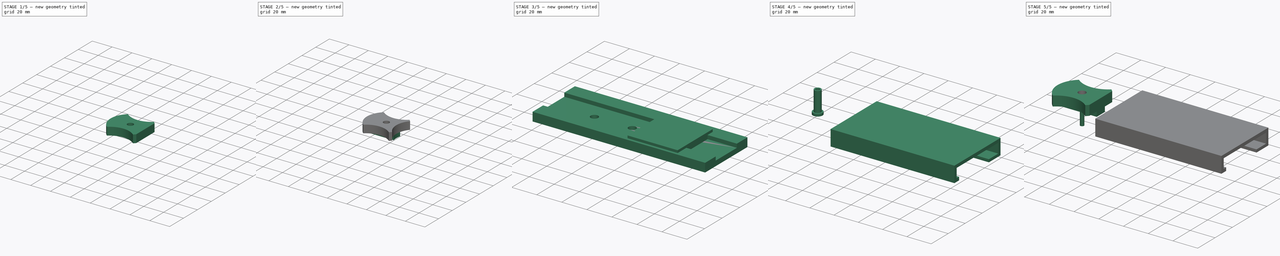
[diagram: build sequence overview — one tinted view per stage of 5, left to right]
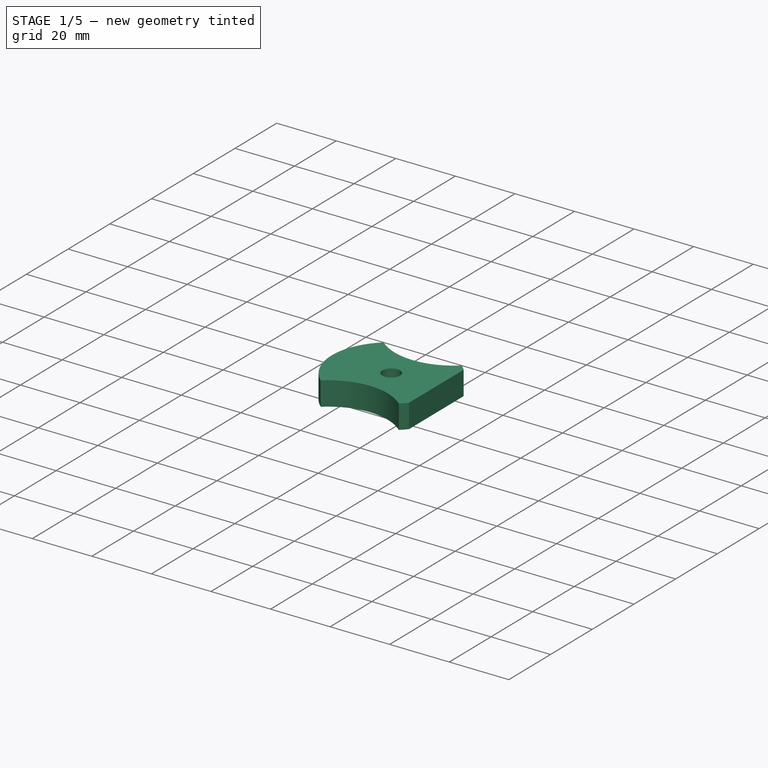
[diagram: stage 1 of 5 — iso view after this stage's code; geometry added in this stage tinted green]
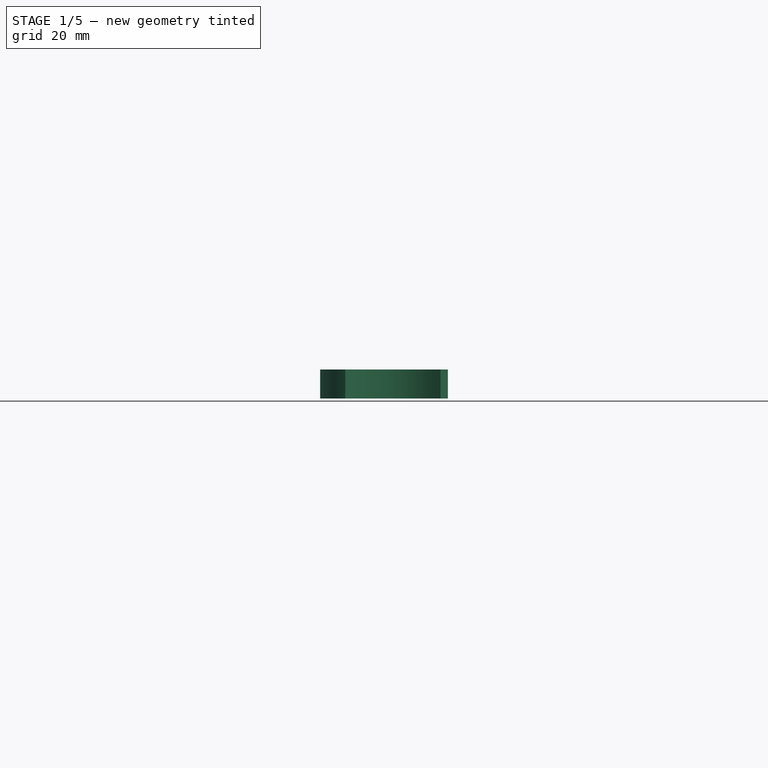
[diagram: stage 1 of 5 — front view after this stage's code; geometry added in this stage tinted green]
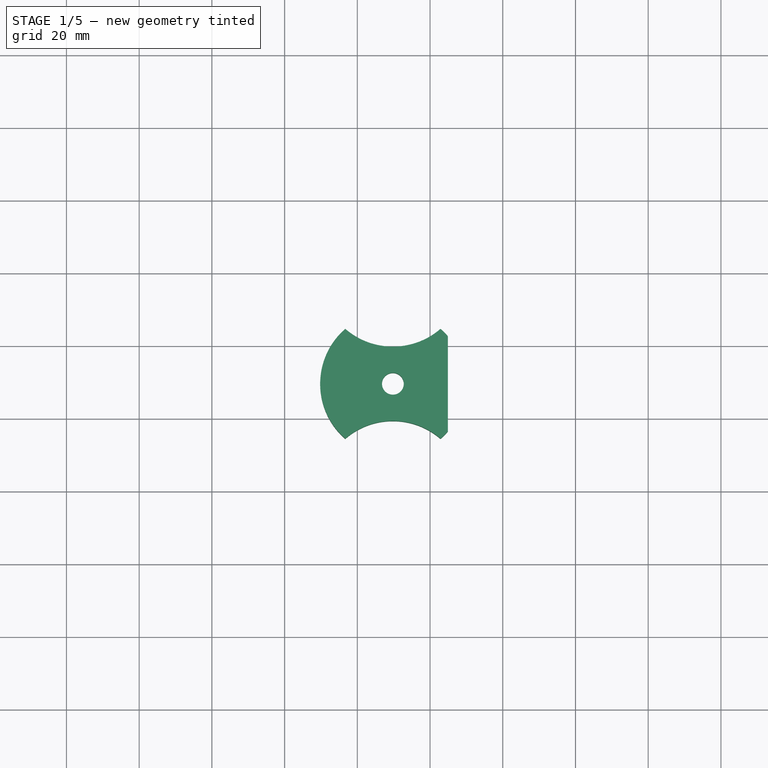
[diagram: stage 1 of 5 — top view after this stage's code; geometry added in this stage tinted green]
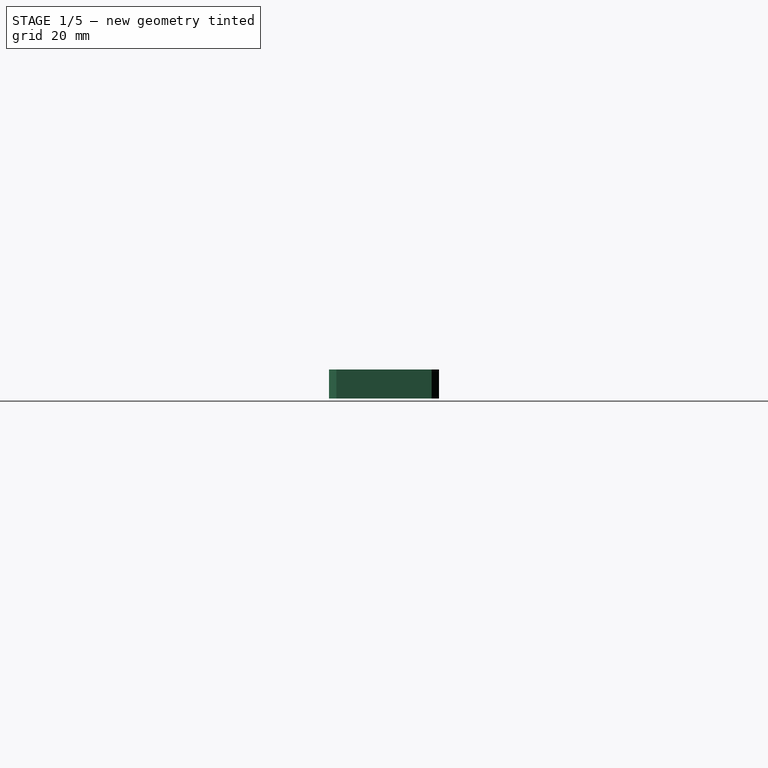
[diagram: stage 1 of 5 — right view after this stage's code; geometry added in this stage tinted green]
FCSTD DOCUMENT  (FreeCAD 0.21R33668 +26 (Git))
Label: discs
License: All rights reserved
LicenseURL: https://en.wikipedia.org/wiki/All_rights_reserved
objects: Sketcher::SketchObject×14, PartDesign::Pad×13, PartDesign::Body×13, PartDesign::ShapeBinder×10, PartDesign::FeatureBase×2, PartDesign::Boolean×2
note: 67 computed .brp shape members not serialized (recipe doc carries the construction recipe); baked Part::Feature solids carry a one-line shape summary decoded from their .brp

FEATURE [Sketcher::SketchObject] Sketch  label="Pieces Sketch"
  FullyConstrained = false
  MapMode = 5
  Support = -> [XY_Plane001]
  sketch-geometry (10):
    g0: ArcOfCircle CenterX=0 CenterY=769.625 CenterZ=0 NormalX=0 NormalY=0 NormalZ=1 AngleXU=0 Radius=20 StartAngle=2.42736 EndAngle=3.85583
    g1: ArcOfCircle CenterX=-30.2237 CenterY=769.625 CenterZ=0 NormalX=0 NormalY=0 NormalZ=1 AngleXU=0 Radius=20 StartAngle=5.42663 EndAngle=5.56895
    g2: LineSegment StartX=-15.1119 StartY=756.524 StartZ=0 EndX=-15.1119 EndY=782.725 EndZ=0
    g3: ArcOfCircle CenterX=-30.2237 CenterY=739.401 CenterZ=0 NormalX=0 NormalY=0 NormalZ=1 AngleXU=0 Radius=20 StartAngle=0.856559 EndAngle=2.28503
    g4: LineSegment StartX=-17.1229 StartY=754.513 StartZ=0 EndX=-43.3245 EndY=754.513 EndZ=0
    g5: ArcOfCircle CenterX=-30.2237 CenterY=799.848 CenterZ=0 NormalX=0 NormalY=0 NormalZ=1 AngleXU=0 Radius=20 StartAngle=3.99815 EndAngle=5.42663
    g6: LineSegment StartX=-17.1229 StartY=784.737 StartZ=0 EndX=-43.3245 EndY=784.737 EndZ=0
    g7: Circle CenterX=-30.2237 CenterY=769.625 CenterZ=0 NormalX=0 NormalY=0 NormalZ=1 AngleXU=0 Radius=3
    g8: ArcOfCircle CenterX=-30.2237 CenterY=769.625 CenterZ=0 NormalX=0 NormalY=0 NormalZ=1 AngleXU=0 Radius=20 StartAngle=0.714237 EndAngle=0.856559
    g9: ArcOfCircle CenterX=-30.2237 CenterY=769.625 CenterZ=0 NormalX=0 NormalY=0 NormalZ=1 AngleXU=0 Radius=20 StartAngle=2.28503 EndAngle=3.99815
  constraints (36):
    c: PointOnObject(g0,g-2)
    c: Horizontal(g0,g1)
    c: Equal(g1,g0)
    c: Vertical(g2)
    c: PointOnObject(g2,g1)
    c: PointOnObject(g2,g0)
    c: PointOnObject(g2,g0)
    c: Vertical(g3,g1)
    c: Equal(g3,g1)
    c: Horizontal(g4)
    c: PointOnObject(g4,g1)
    c: PointOnObject(g4,g3)
    c: PointOnObject(g4,g1)
    c: Equal(g4,g2)
    c: Equal(g5,g1)
    c: Vertical(g1,g5)
    c: Horizontal(g6)
    c: PointOnObject(g6,g5)
    c: PointOnObject(g6,g1)
    c: PointOnObject(g6,g1)
    c: Equal(g4,g6)
    c: Coincident(g7,g1)
    c: PointOnObject(g5,g1)
    c: PointOnObject(g5,g1)
    c: Coincident(g9,g3)
    c: Coincident(g1,g3)
    c: Equal(g1,g8)
    c: Coincident(g1,g0)
    c: Coincident(g8,g0)
    c: Coincident(g1,g8)
    c: Equal(g8,g9)
    c: PointOnObject(g8,g5)
    c: PointOnObject(g9,g5)
    c: Coincident(g8,g9)
    c: Diameter(g7) = 6
    c: Radius(g9) = 20
FEATURE [PartDesign::Pad] Pad  label="Pad of piece"
  Direction = (0,0,1)
  Length = 8
  Length2 = 10
  Profile = -> Sketch
  ReferenceAxis = -> Sketch [N_Axis]
  Type = 0
FEATURE [Sketcher::SketchObject] Sketch002  label="Cutout sketch"
  ExternalGeometry = -> [Sketch]
  FullyConstrained = true
  MapMode = 2
  Support = -> [Sketch]
  sketch-geometry (2):
    g0: LineSegment StartX=-15.1119 StartY=782.725 StartZ=0 EndX=-15.1119 EndY=756.524 EndZ=0
    g1: ArcOfCircle CenterX=0 CenterY=769.625 CenterZ=0 NormalX=0 NormalY=0 NormalZ=1 AngleXU=0 Radius=20 StartAngle=2.42736 EndAngle=3.85583
  constraints (5):
    c: Coincident(g0,g-3)
    c: Coincident(g1,g-3)
    c: Coincident(g1,g0)
    c: Coincident(g1,g0)
    c: Vertical(g0)
FEATURE [PartDesign::Body] Body001  label="Regular piece without handle"
  Group = -> [Sketch,Pad,Sketch002]
  Origin = -> Origin001
  Tip = -> Pad
FEATURE [PartDesign::ShapeBinder] ShapeBinder  label="ShapeBinder for cutout"
  Support = -> [Sketch]
  TraceSupport = false
FEATURE [Sketcher::SketchObject] Sketch003  label="Cutout sketch001"
  ExternalGeometry = -> [ShapeBinder]
  FullyConstrained = true
  MapMode = 5
  Support = -> [XY_Plane]
  sketch-geometry (2):
    g0: ArcOfCircle CenterX=0 CenterY=769.625 CenterZ=0 NormalX=0 NormalY=0 NormalZ=1 AngleXU=0 Radius=20 StartAngle=2.42736 EndAngle=3.85583
    g1: LineSegment StartX=-15.1119 StartY=782.725 StartZ=0 EndX=-15.1119 EndY=756.524 EndZ=0
  constraints (5):
    c: Coincident(g0,g-3)
    c: Coincident(g0,g-3)
    c: Coincident(g1,g0)
    c: Coincident(g1,g0)
    c: Vertical(g1)
FEATURE [PartDesign::Pad] Pad003  label="Cutout pad"
  Direction = (0,0,1)
  Length = 8
  Length2 = 10
  Profile = -> Sketch003
  ReferenceAxis = -> Sketch003 [N_Axis]
  Type = 0
FEATURE [PartDesign::Body] Body003
  Group = -> [Clone]
  Origin = -> Origin003
  Tip = -> Clone
FEATURE [PartDesign::FeatureBase] Clone001
  BaseFeature = -> Body
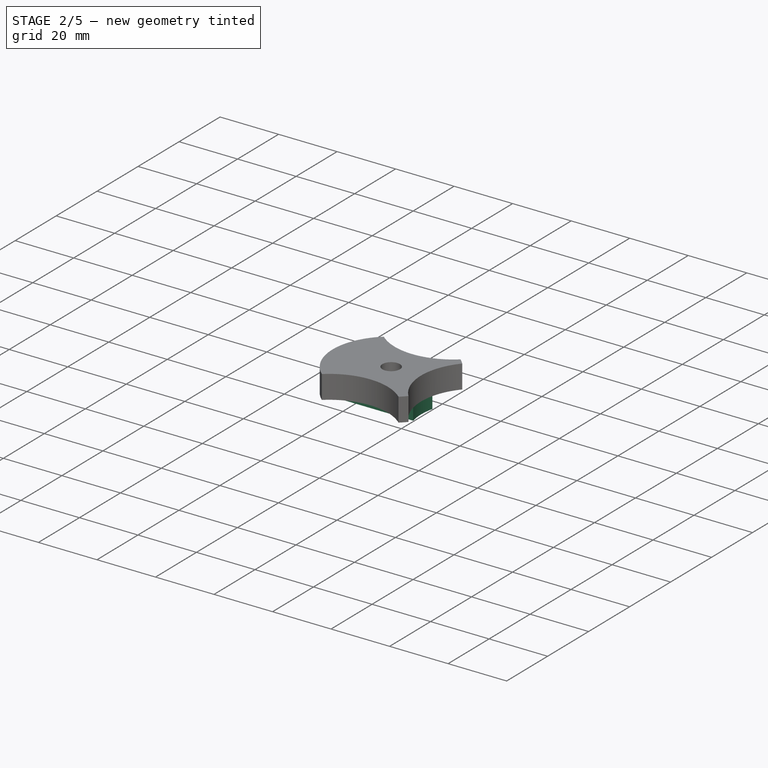
[diagram: stage 2 of 5 — iso view after this stage's code; geometry added in this stage tinted green]
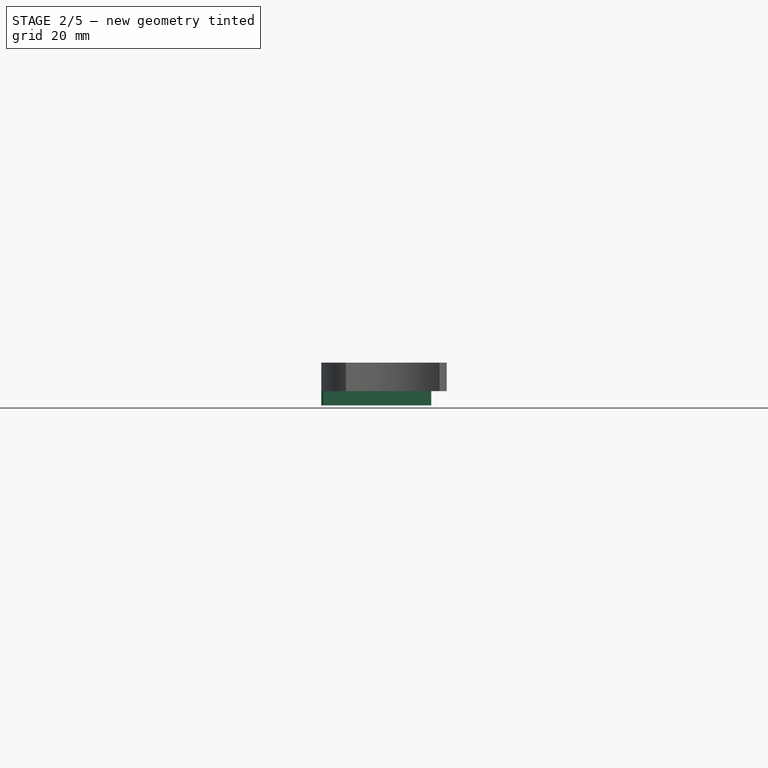
[diagram: stage 2 of 5 — front view after this stage's code; geometry added in this stage tinted green]
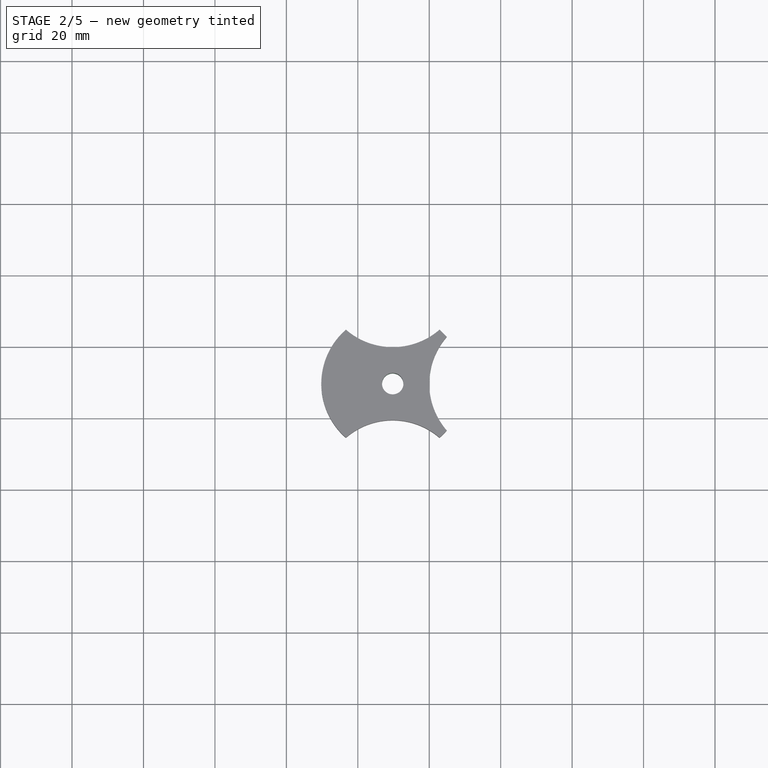
[diagram: stage 2 of 5 — top view after this stage's code; geometry added in this stage tinted green]
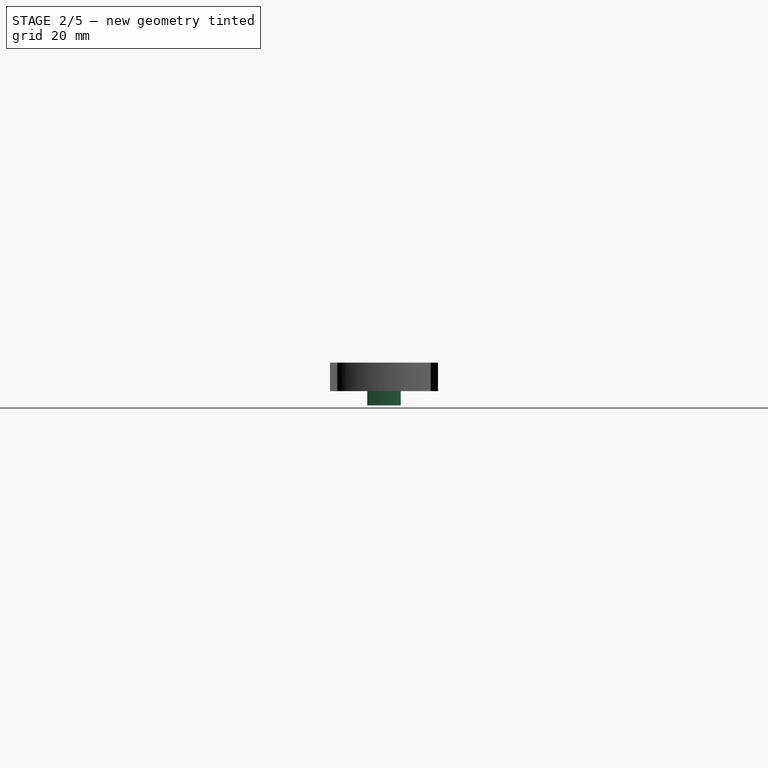
[diagram: stage 2 of 5 — right view after this stage's code; geometry added in this stage tinted green]
FEATURE [PartDesign::Body] Body  label="Cutout - not needed for export"
  Group = -> [ShapeBinder,Sketch003,Pad003]
  Origin = -> Origin
  Tip = -> Pad003
FEATURE [PartDesign::FeatureBase] Clone
  BaseFeature = -> Body001
FEATURE [PartDesign::Body] Body004
  Group = -> [Clone001]
  Origin = -> Origin004
  Tip = -> Clone001
FEATURE [PartDesign::Boolean] Boolean
  Group = -> [Body003,Body004]
  Type = 0
FEATURE [PartDesign::Body] Body005  label="Flat Side Piece"
  Group = -> [Boolean]
  Origin = -> Origin005
  Tip = -> Boolean
FEATURE [PartDesign::ShapeBinder] ShapeBinder001
  Support = -> [Boolean]
  TraceSupport = false
FEATURE [Sketcher::SketchObject] Sketch004  label="Sketch for handle"
  ExternalGeometry = -> [ShapeBinder001]
  FullyConstrained = false
  MapMode = 2
  Support = -> [ShapeBinder001]
  sketch-geometry (6):
    g0: LineSegment StartX=-49.6655 StartY=774.317 StartZ=0 EndX=-19.4418 EndY=774.317 EndZ=0
    g1: LineSegment StartX=-49.6655 StartY=764.932 StartZ=0 EndX=-19.4418 EndY=764.932 EndZ=0
    g2: LineSegment StartX=-30.2237 StartY=774.317 StartZ=0 EndX=-30.2237 EndY=764.932 EndZ=0
    g3: ArcOfCircle CenterX=-30.2237 CenterY=769.625 CenterZ=0 NormalX=0 NormalY=0 NormalZ=1 AngleXU=0 Radius=20 StartAngle=2.90477 EndAngle=3.37841
    g4: ArcOfCircle CenterX=0 CenterY=769.625 CenterZ=0 NormalX=0 NormalY=0 NormalZ=1 AngleXU=0 Radius=20 StartAngle=2.90477 EndAngle=3.37841
    g5: Circle CenterX=-30.2237 CenterY=769.625 CenterZ=0 NormalX=0 NormalY=0 NormalZ=1 AngleXU=0 Radius=3
  constraints (16):
    c: Horizontal(g0)
    c: Horizontal(g1)
    c: PointOnObject(g0,g-4)
    c: PointOnObject(g0,g-5)
    c: PointOnObject(g2,g0)
    c: PointOnObject(g2,g1)
    c: Vertical(g2)
    c: Symmetric(g2,g2,g-4)
    c: Coincident(g3,g-4)
    c: Coincident(g3,g0)
    c: Coincident(g3,g1)
    c: Coincident(g4,g-5)
    c: Coincident(g4,g0)
    c: Coincident(g4,g1)
    c: Coincident(g5,g3)
    c: Equal(g5,g-3)
FEATURE [PartDesign::Pad] Pad004  label="Pad for handle"
  Direction = (0,0,1)
  Length = 4
  Length2 = 10
  Profile = -> Sketch004
  ReferenceAxis = -> Sketch004 [N_Axis]
  Reversed = true
  Type = 0
FEATURE [PartDesign::Body] Body006  label="Handle for regular piece"
  Group = -> [ShapeBinder001,Sketch004,Pad004]
  Origin = -> Origin006
  Tip = -> Pad004
FEATURE [PartDesign::Boolean] Boolean001
  Group = -> [Body006,Body001]
  Type = 0
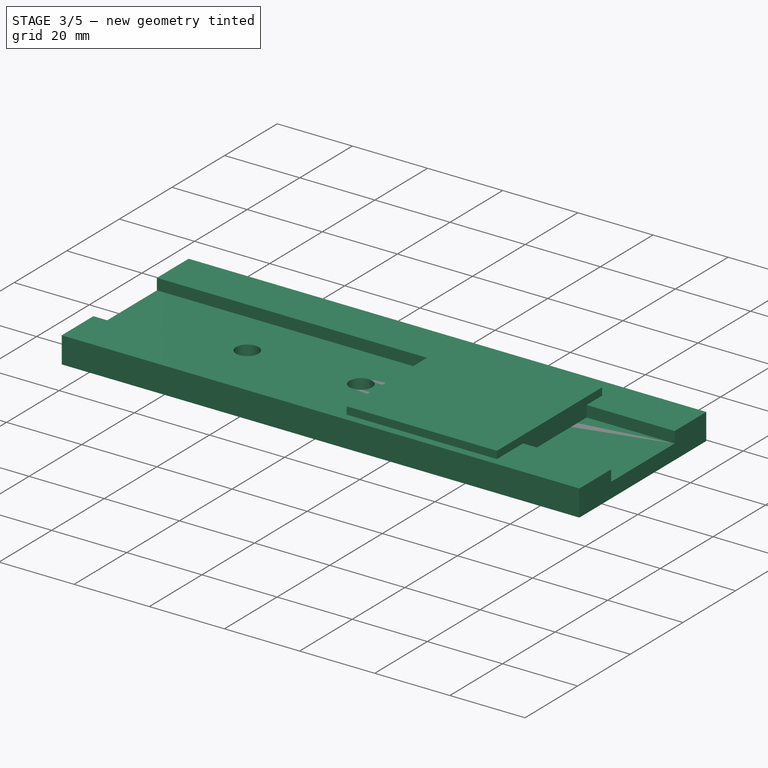
[diagram: stage 3 of 5 — iso view after this stage's code; geometry added in this stage tinted green]
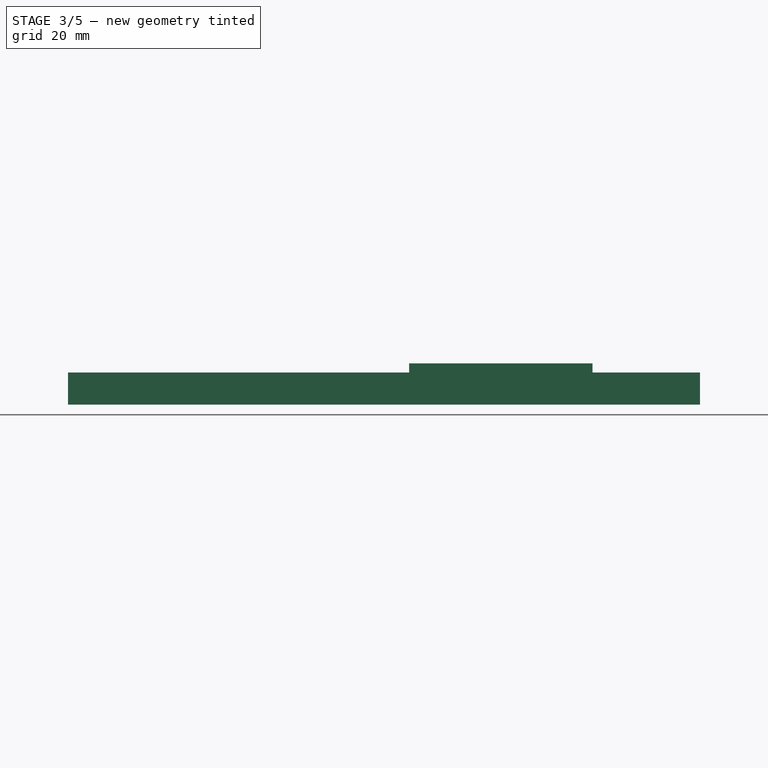
[diagram: stage 3 of 5 — front view after this stage's code; geometry added in this stage tinted green]
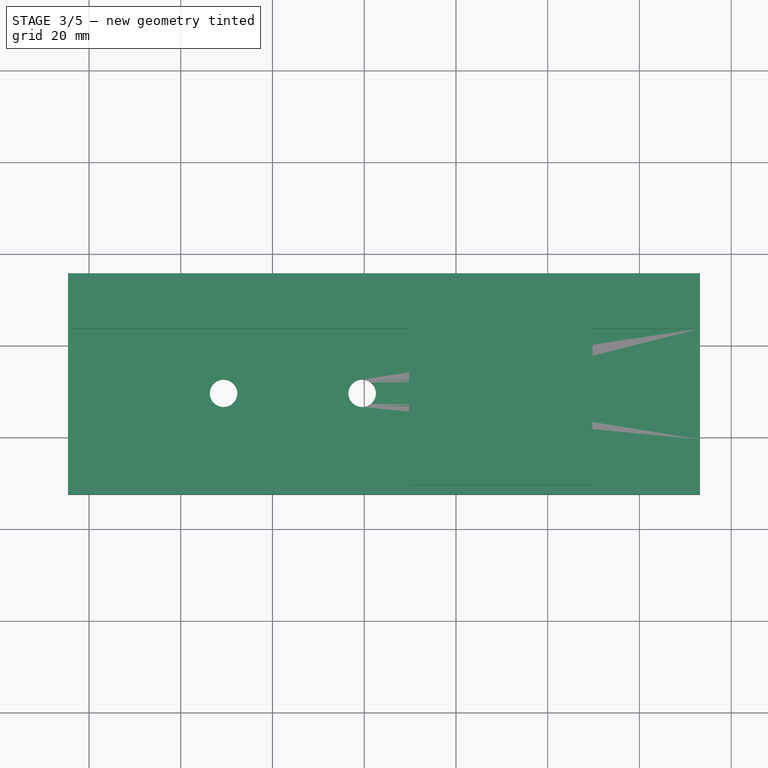
[diagram: stage 3 of 5 — top view after this stage's code; geometry added in this stage tinted green]
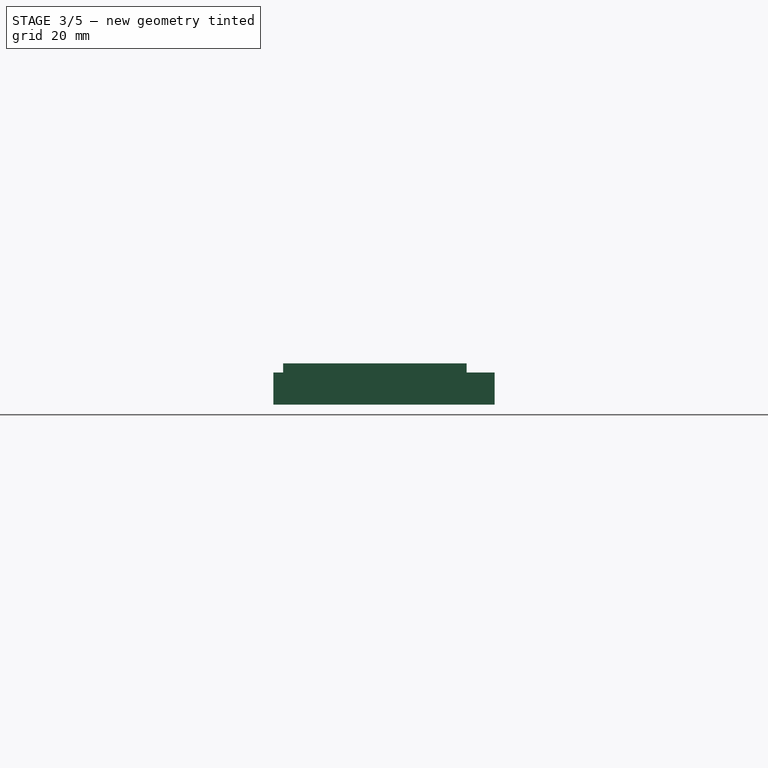
[diagram: stage 3 of 5 — right view after this stage's code; geometry added in this stage tinted green]
FEATURE [PartDesign::Body] Body010  label="PegBottom"
  Group = -> [ShapeBinder005,Sketch008,Pad008,Sketch009,Pad009]
  Origin = -> Origin010
  Placement = pos=(0,0,12.25) rot=(0,0,1;0rad)
  Tip = -> Pad009
FEATURE [PartDesign::ShapeBinder] ShapeBinder006
  Support = -> [Boolean001]
  TraceSupport = false
FEATURE [Sketcher::SketchObject] Sketch010
  ExternalGeometry = -> [ShapeBinder006]
  FullyConstrained = false
  MapMode = 5
  Support = -> [XY_Plane011]
  sketch-geometry (14):
    g0: Circle CenterX=-30.2237 CenterY=769.625 CenterZ=0 NormalX=0 NormalY=0 NormalZ=1 AngleXU=0 Radius=3
    g1: Circle CenterX=-60.4474 CenterY=769.625 CenterZ=0 NormalX=0 NormalY=0 NormalZ=1 AngleXU=0 Radius=3
    g2: LineSegment StartX=-20 StartY=769.625 StartZ=0 EndX=-30.2237 EndY=769.625 EndZ=0
    g3: LineSegment StartX=-50.2237 StartY=769.625 StartZ=0 EndX=-60.4474 EndY=769.625 EndZ=0
    g4: LineSegment StartX=-60.4474 StartY=769.625 StartZ=0 EndX=-80.4474 EndY=769.625 EndZ=0
    g5: LineSegment StartX=-30.2237 StartY=769.625 StartZ=0 EndX=-50.2237 EndY=769.625 EndZ=0
    g6: Circle CenterX=-90.6712 CenterY=769.625 CenterZ=0 NormalX=0 NormalY=0 NormalZ=1 AngleXU=0 Radius=3
    g7: LineSegment StartX=-80.4474 StartY=769.625 StartZ=0 EndX=-90.6712 EndY=769.625 EndZ=0
    g8: LineSegment StartX=-124.581 StartY=784.737 StartZ=0 EndX=13.2011 EndY=784.737 EndZ=0
    g9: LineSegment StartX=13.2011 StartY=754.513 StartZ=0 EndX=-124.581 EndY=754.513 EndZ=0
    g10: LineSegment StartX=-124.581 StartY=795.737 StartZ=0 EndX=13.2011 EndY=795.737 EndZ=0
    g11: LineSegment StartX=13.2011 StartY=795.737 StartZ=0 EndX=13.2011 EndY=747.513 EndZ=0
    g12: LineSegment StartX=13.2011 StartY=747.513 StartZ=0 EndX=-124.581 EndY=747.513 EndZ=0
    g13: LineSegment StartX=-124.581 StartY=747.513 StartZ=0 EndX=-124.581 EndY=795.737 EndZ=0
  constraints (39):
    c: Coincident(g0,g-5)
    c: PointOnObject(g2,g-4)
    c: Equal(g1,g0)
    c: Horizontal(g2)
    c: Coincident(g2,g0)
    c: Horizontal(g3)
    c: Equal(g2,g3)
    c: Coincident(g1,g3)
    c: Coincident(g4,g1)
    c: Horizontal(g4)
    c: Coincident(g5,g0)
    c: PointOnObject(g5,g-3)
    c: Horizontal(g5)
    c: Coincident(g5,g3)
    c: Equal(g4,g5)
    c: Coincident(g7,g4)
    c: Horizontal(g7)
    c: Equal(g7,g3)
    c: Coincident(g6,g7)
    c: Equal(g6,g0)
    c: Horizontal(g8)
    c: Horizontal(g9)
    c: PointOnObject(g-3,g8)
    c: PointOnObject(g-3,g9)
    c: Coincident(g10,g11)
    c: Coincident(g11,g12)
    c: Coincident(g12,g13)
    c: Coincident(g13,g10)
    c: Horizontal(g10)
    c: Horizontal(g12)
    c: Vertical(g11)
    c: Vertical(g13)
    c: DistanceY(g11,g9) = 7
    c: DistanceY(g8,g10) = 11
    c: PointOnObject(g8,g13)
    c: PointOnObject(g9,g13)
    c: PointOnObject(g8,g11)
    c: PointOnObject(g9,g11)
    c: Equal(g-5,g0)
FEATURE [PartDesign::Pad] Pad010
  Direction = (0,0,1)
  Length = 4
  Length2 = 10
  Profile = -> Sketch010
  ReferenceAxis = -> Sketch010 [N_Axis]
  Reversed = true
  Type = 0
FEATURE [Sketcher::SketchObject] Sketch011
  ExternalGeometry = -> [Pad010]
  FullyConstrained = false
  MapMode = 5
  Support = -> [XY_Plane011]
  sketch-geometry (8):
    g0: LineSegment StartX=-124.581 StartY=747.513 StartZ=0 EndX=13.2011 EndY=747.513 EndZ=0
    g1: LineSegment StartX=13.2011 StartY=747.513 StartZ=0 EndX=13.2011 EndY=759.546 EndZ=0
    g2: LineSegment StartX=13.2011 StartY=759.546 StartZ=0 EndX=-124.581 EndY=759.546 EndZ=0
    g3: LineSegment StartX=-124.581 StartY=759.546 StartZ=0 EndX=-124.581 EndY=747.513 EndZ=0
    g4: LineSegment StartX=-124.581 StartY=795.737 StartZ=0 EndX=13.2011 EndY=795.737 EndZ=0
    g5: LineSegment StartX=13.2011 StartY=795.737 StartZ=0 EndX=13.2011 EndY=783.704 EndZ=0
    g6: LineSegment StartX=13.2011 StartY=783.704 StartZ=0 EndX=-124.581 EndY=783.704 EndZ=0
    g7: LineSegment StartX=-124.581 StartY=783.704 StartZ=0 EndX=-124.581 EndY=795.737 EndZ=0
  constraints (21):
    c: Coincident(g0,g1)
    c: Coincident(g1,g2)
    c: Coincident(g2,g3)
    c: Coincident(g3,g0)
    c: Horizontal(g0)
    c: Horizontal(g2)
    c: Vertical(g1)
    c: Vertical(g3)
    c: Coincident(g0,g-6)
    c: PointOnObject(g1,g-5)
    c: Coincident(g4,g5)
    c: Coincident(g5,g6)
    c: Coincident(g6,g7)
    c: Coincident(g7,g4)
    c: Horizontal(g4)
    c: Horizontal(g6)
    c: Vertical(g5)
    c: Vertical(g7)
    c: Coincident(g4,g-6)
    c: PointOnObject(g5,g-5)
    c: Equal(g3,g7)
FEATURE [PartDesign::Pad] Pad011
  BaseFeature = -> Pad010
  Direction = (0,0,1)
  Length = 3
  Length2 = 10
  Profile = -> Sketch011
  ReferenceAxis = -> Sketch011 [N_Axis]
  Type = 0
FEATURE [PartDesign::Body] Body011  label="Backing board"
  Group = -> [Sketch010,ShapeBinder006,Pad010,Sketch011,Pad011]
  Origin = -> Origin011
  Placement = pos=(0,0,12) rot=(0,0,1;0rad)
  Tip = -> Pad011
FEATURE [PartDesign::ShapeBinder] ShapeBinder008
  Support = -> [Boolean001]
  TraceSupport = false
FEATURE [PartDesign::ShapeBinder] ShapeBinder007
  Support = -> [Pad011]
  TraceSupport = false
FEATURE [PartDesign::ShapeBinder] ShapeBinder009
  Support = -> [Boolean001]
  TraceSupport = false
FEATURE [Sketcher::SketchObject] Sketch014
  ExternalGeometry = -> [ShapeBinder009]
  FullyConstrained = true
  sketch-geometry (5):
    g0: Circle CenterX=-30.2237 CenterY=769.625 CenterZ=0 NormalX=0 NormalY=0 NormalZ=1 AngleXU=0 Radius=20
    g1: LineSegment StartX=-50.2237 StartY=789.625 StartZ=0 EndX=-10.2237 EndY=789.625 EndZ=0
    g2: LineSegment StartX=-10.2237 StartY=789.625 StartZ=0 EndX=-10.2237 EndY=749.625 EndZ=0
    g3: LineSegment StartX=-10.2237 StartY=749.625 StartZ=0 EndX=-50.2237 EndY=749.625 EndZ=0
    g4: LineSegment StartX=-50.2237 StartY=749.625 StartZ=0 EndX=-50.2237 EndY=789.625 EndZ=0
  constraints (14):
    c: Coincident(g0,g-4)
    c: Coincident(g1,g2)
    c: Coincident(g2,g3)
    c: Coincident(g3,g4)
    c: Coincident(g4,g1)
    c: Horizontal(g1)
    c: Horizontal(g3)
    c: Vertical(g2)
    c: Vertical(g4)
    c: Equal(g0,g-4)
    c: Tangent(g3,g0)
    c: Tangent(g0,g2)
    c: Tangent(g1,g0)
    c: Tangent(g4,g0)
FEATURE [PartDesign::Pad] Pad012
  Direction = (0,0,1)
  Length = 5
  Length2 = 10
  Profile = -> Sketch014
  ReferenceAxis = -> Sketch014 [N_Axis]
  Type = 0
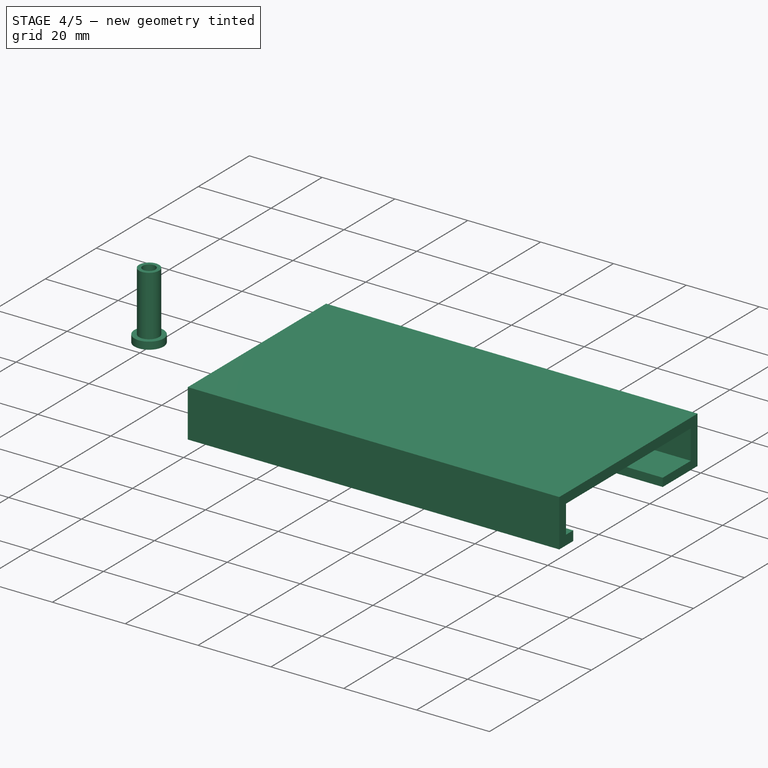
[diagram: stage 4 of 5 — iso view after this stage's code; geometry added in this stage tinted green]
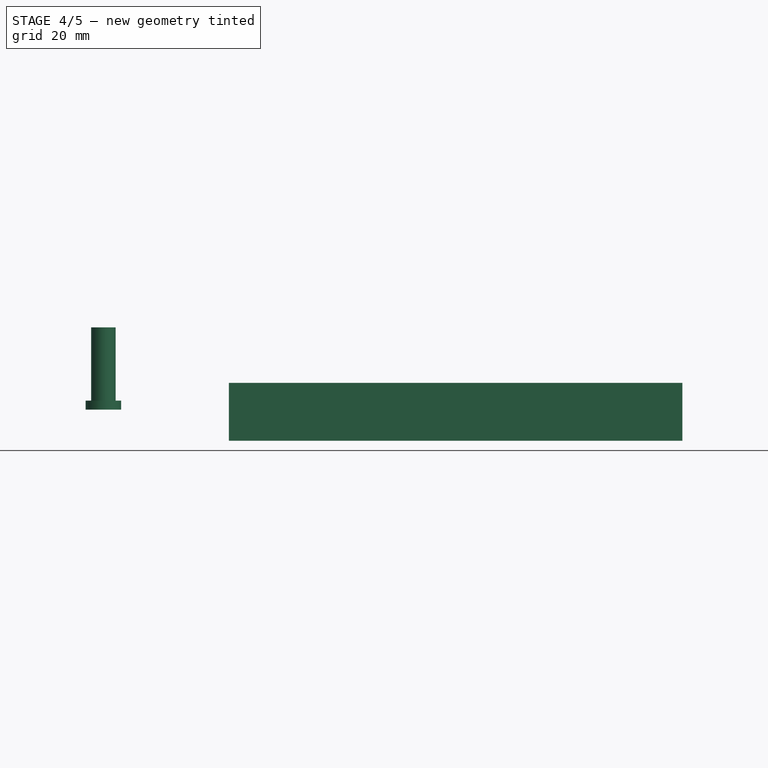
[diagram: stage 4 of 5 — front view after this stage's code; geometry added in this stage tinted green]
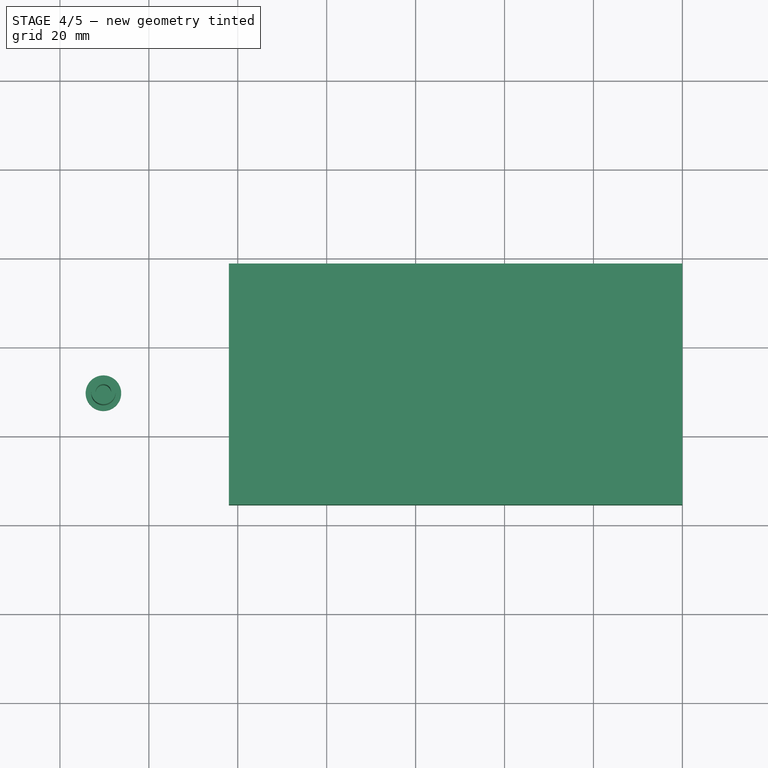
[diagram: stage 4 of 5 — top view after this stage's code; geometry added in this stage tinted green]
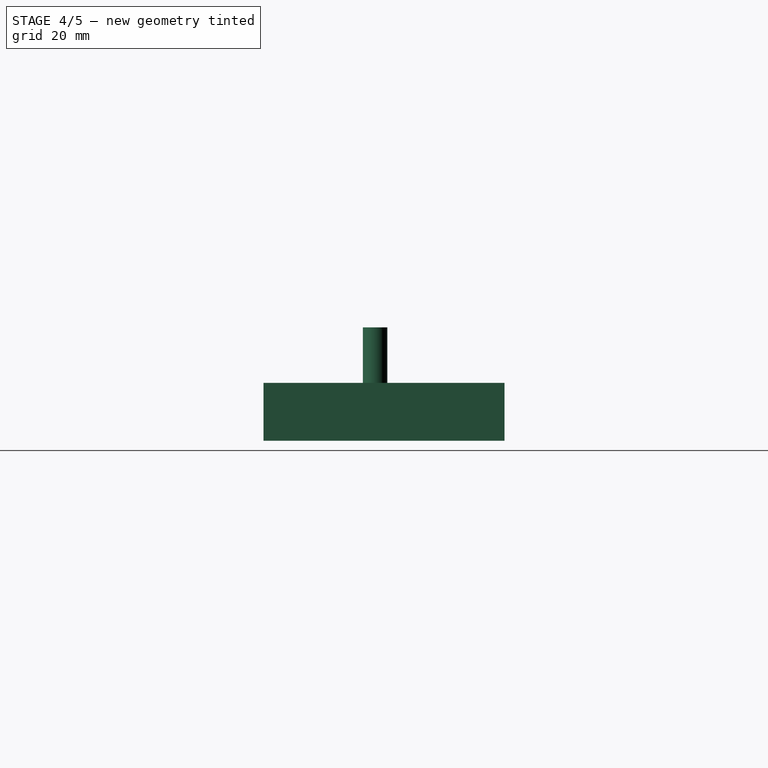
[diagram: stage 4 of 5 — right view after this stage's code; geometry added in this stage tinted green]
FEATURE [PartDesign::Body] Body008  label="Flat piece with handle"
  Group = -> [Sketch005,ShapeBinder002,Pad005]
  Origin = -> Origin008
  Tip = -> Pad005
FEATURE [PartDesign::ShapeBinder] ShapeBinder004
  Placement = pos=(0,0,8) rot=(0,0,1;0rad)
  Support = -> [Boolean001]
  TraceSupport = false
FEATURE [Sketcher::SketchObject] Sketch006
  ExternalGeometry = -> [ShapeBinder004]
  FullyConstrained = false
  MapMode = 5
  Support = -> [XY_Plane009]
  sketch-geometry (3):
    g0: Circle CenterX=-30.2237 CenterY=769.625 CenterZ=0 NormalX=0 NormalY=0 NormalZ=1 AngleXU=0 Radius=4
    g1: LineSegment StartX=-30.2237 StartY=769.625 StartZ=0 EndX=-29.7139 EndY=773.592 EndZ=0
    g2: GeomPoint X=-29.8414 Y=772.6 Z=0
  constraints (6):
    c: Coincident(g0,g-3)
    c: Coincident(g1,g0)
    c: PointOnObject(g1,g0)
    c: PointOnObject(g2,g1)
    c: PointOnObject(g2,g-3)
    c: Distance(g1,g2) = 1
FEATURE [PartDesign::Pad] Pad006
  Direction = (0,0,1)
  Length = 2
  Length2 = 10
  Profile = -> Sketch006
  ReferenceAxis = -> Sketch006 [N_Axis]
  Type = 0
FEATURE [Sketcher::SketchObject] Sketch007
  ExternalGeometry = -> [ShapeBinder004]
  FullyConstrained = false
  sketch-geometry (5):
    g0: Circle CenterX=-30.2237 CenterY=769.625 CenterZ=0 NormalX=0 NormalY=0 NormalZ=1 AngleXU=0 Radius=2.75
    g1: LineSegment StartX=-30.2237 StartY=769.625 StartZ=0 EndX=-33.2162 EndY=769.838 EndZ=0
    g2: GeomPoint X=-32.9668 Y=769.82 Z=0
    g3: Circle CenterX=-30.2237 CenterY=769.625 CenterZ=0 NormalX=0 NormalY=0 NormalZ=1 AngleXU=0 Radius=1.75
    g4: GeomPoint X=-31.9693 Y=769.749 Z=0
  constraints (10):
    c: Coincident(g0,g-3)
    c: Coincident(g1,g0)
    c: PointOnObject(g1,g-3)
    c: PointOnObject(g2,g0)
    c: PointOnObject(g2,g1)
    c: Distance(g2,g1) = 0.25
    c: Coincident(g3,g0)
    c: PointOnObject(g4,g3)
    c: PointOnObject(g4,g1)
    c: Distance(g2,g4) = 1
FEATURE [PartDesign::Pad] Pad007
  BaseFeature = -> Pad006
  Direction = (0,0,1)
  Length = 18.5
  Length2 = 10
  Profile = -> Sketch007
  ReferenceAxis = -> Sketch007 [N_Axis]
  Type = 0
FEATURE [PartDesign::Body] Body013  label="Full circle-reference only"
  Group = -> [ShapeBinder009,Sketch014,Pad012]
  Origin = -> Origin013
  Tip = -> Pad012
FEATURE [PartDesign::ShapeBinder] ShapeBinder010
  Support = -> [Pad012]
  TraceSupport = false
FEATURE [Sketcher::SketchObject] Sketch012
  ExternalGeometry = -> [ShapeBinder007,ShapeBinder008,ShapeBinder010]
  FullyConstrained = true
  Placement = pos=(0,0,0) rot=(0.57735,0.57735,0.57735;2.0944rad)
  sketch-geometry (12):
    g0: LineSegment StartX=744.513 StartY=-7 StartZ=0 EndX=744.513 EndY=6 EndZ=0
    g1: LineSegment StartX=744.513 StartY=6 StartZ=0 EndX=798.737 EndY=6 EndZ=0
    g2: LineSegment StartX=798.737 StartY=6 StartZ=0 EndX=798.737 EndY=-7 EndZ=0
    g3: LineSegment StartX=798.737 StartY=-7 StartZ=0 EndX=785.087 EndY=-7 EndZ=0
    g4: LineSegment StartX=744.513 StartY=-7 StartZ=0 EndX=749.975 EndY=-7 EndZ=0
    g5: LineSegment StartX=796.087 StartY=3.35 StartZ=0 EndX=747.163 EndY=3.35 EndZ=0
    g6: LineSegment StartX=747.163 StartY=3.35 StartZ=0 EndX=747.163 EndY=-4.35 EndZ=0
    g7: LineSegment StartX=796.087 StartY=3.35 StartZ=0 EndX=796.087 EndY=-4.7 EndZ=0
    g8: LineSegment StartX=796.087 StartY=-4.7 StartZ=0 EndX=785.087 EndY=-4.7 EndZ=0
    g9: LineSegment StartX=785.087 StartY=-7 StartZ=0 EndX=785.087 EndY=-4.7 EndZ=0
    g10: LineSegment StartX=747.163 StartY=-4.35 StartZ=0 EndX=749.975 EndY=-4.35 EndZ=0
    g11: LineSegment StartX=749.975 StartY=-4.35 StartZ=0 EndX=749.975 EndY=-7 EndZ=0
  constraints (36):
    c: Coincident(g0,g1)
    c: Coincident(g1,g2)
    c: Horizontal(g1)
    c: Vertical(g0)
    c: Vertical(g2)
    c: DistanceX(g0,g-6) = 3
    c: DistanceX(g-8,g1) = 3
    c: DistanceY(g-8,g1) = 3
    c: DistanceY(g2,g-9) = 3
    c: DistanceY(g0,g-4) = 3
    c: Coincident(g3,g2)
    c: Horizontal(g3)
    c: DistanceX(g-10,g3) = 0.35
    c: Coincident(g4,g0)
    c: Horizontal(g4)
    c: DistanceX(g-11,g4) = 0.35
    c: Horizontal(g5)
    c: DistanceY(g-6,g5) = 0.35
    c: DistanceX(g-8,g5) = 0.35
    c: DistanceX(g5,g-6) = 0.35
    c: Coincident(g6,g5)
    c: Vertical(g6)
    c: DistanceY(g6,g-4) = 0.35
    c: Coincident(g7,g5)
    c: Vertical(g7)
    c: DistanceY(g7,g6) = 0.35
    c: Coincident(g8,g7)
    c: Horizontal(g8)
    c: Coincident(g9,g3)
    c: Coincident(g9,g8)
    c: Vertical(g9)
    c: Coincident(g10,g6)
    c: Horizontal(g10)
    c: Coincident(g11,g10)
    c: Vertical(g11)
    c: Coincident(g11,g4)
FEATURE [PartDesign::Pad] Pad013
  Direction = (1,0,0)
  Length = 100
  Length2 = 10
  Placement = pos=(0,0,0) rot=(0.57735,0.57735,0.57735;2.0944rad)
  Profile = -> Sketch012
  ReferenceAxis = -> Sketch012 [N_Axis]
  Type = 0
FEATURE [Sketcher::SketchObject] Sketch013
  ExternalGeometry = -> [Pad013]
  FullyConstrained = true
  Placement = pos=(0,0,0) rot=(0.57735,0.57735,0.57735;2.0944rad)
  sketch-geometry (4):
    g0: LineSegment StartX=744.513 StartY=6 StartZ=0 EndX=798.737 EndY=6 EndZ=0
    g1: LineSegment StartX=798.737 StartY=6 StartZ=0 EndX=798.737 EndY=-7 EndZ=0
    g2: LineSegment StartX=798.737 StartY=-7 StartZ=0 EndX=744.513 EndY=-7 EndZ=0
    g3: LineSegment StartX=744.513 StartY=-7 StartZ=0 EndX=744.513 EndY=6 EndZ=0
  constraints (10):
    c: Coincident(g0,g1)
    c: Coincident(g1,g2)
    c: Coincident(g2,g3)
    c: Coincident(g3,g0)
    c: Horizontal(g0)
    c: Horizontal(g2)
    c: Vertical(g1)
    c: Vertical(g3)
    c: Coincident(g0,g-4)
    c: Coincident(g1,g-6)
FEATURE [PartDesign::Pad] Pad014
  BaseFeature = -> Pad013
  Direction = (1,0,0)
  Length = 2
  Length2 = 10
  Placement = pos=(0,0,0) rot=(0.57735,0.57735,0.57735;2.0944rad)
  Profile = -> Sketch013
  ReferenceAxis = -> Sketch013 [N_Axis]
  Reversed = true
  Type = 0
FEATURE [PartDesign::Body] Body012  label="Frame"
  Group = -> [ShapeBinder007,Sketch012,Sketch013,ShapeBinder008,ShapeBinder010,Pad013,Pad014]
  Origin = -> Origin012
  Placement = pos=(-140,0,12) rot=(0,0,1;0rad)
  Tip = -> Pad014
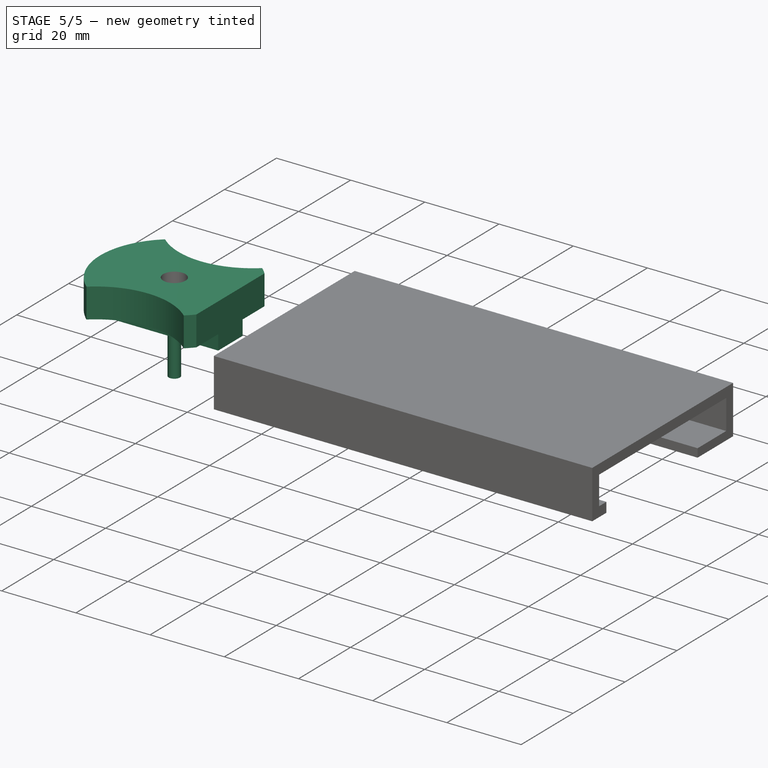
[diagram: stage 5 of 5 — iso view after this stage's code; geometry added in this stage tinted green]
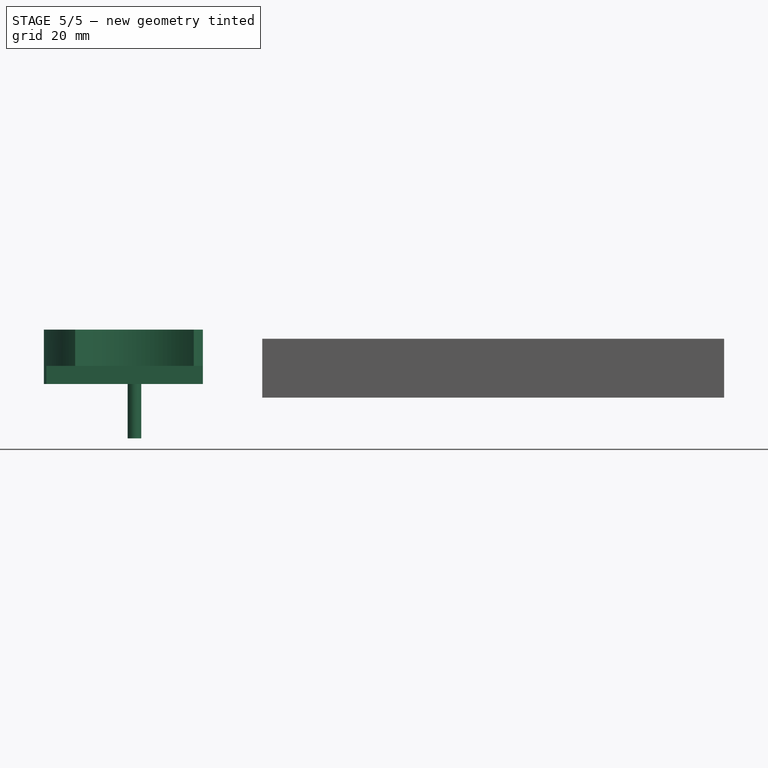
[diagram: stage 5 of 5 — front view after this stage's code; geometry added in this stage tinted green]
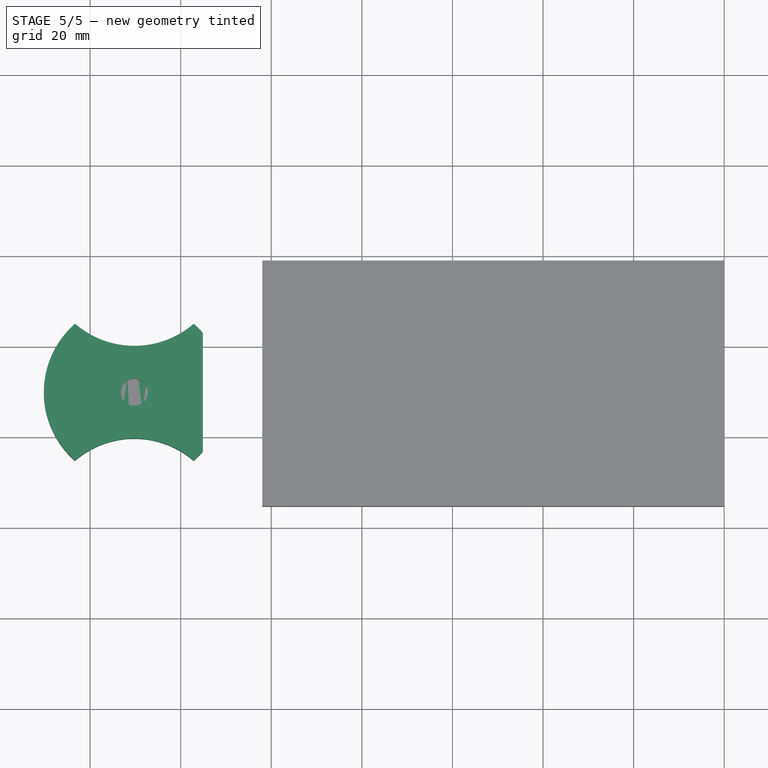
[diagram: stage 5 of 5 — top view after this stage's code; geometry added in this stage tinted green]
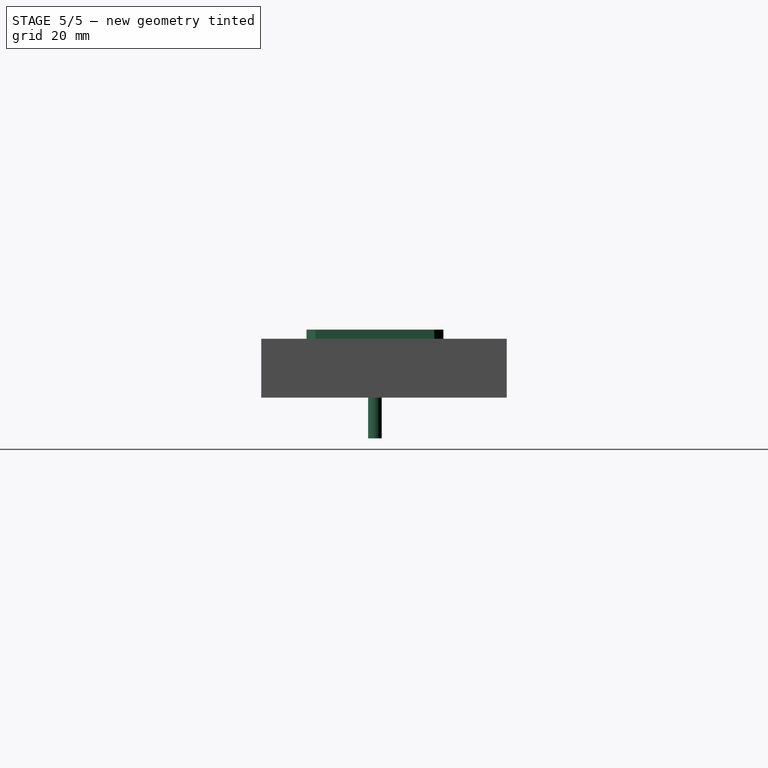
[diagram: stage 5 of 5 — right view after this stage's code; geometry added in this stage tinted green]
FEATURE [PartDesign::Body] Body007  label="Regular piece with handle"
  Group = -> [Boolean001]
  Origin = -> Origin007
  Tip = -> Boolean001
FEATURE [PartDesign::ShapeBinder] ShapeBinder002
  Support = -> [Boolean001]
  TraceSupport = false
FEATURE [Sketcher::SketchObject] Sketch005
  ExternalGeometry = -> [ShapeBinder002]
  FullyConstrained = true
  MapMode = 2
  Support = -> [Body005]
  sketch-geometry (6):
    g0: Circle CenterX=-30.2237 CenterY=769.625 CenterZ=0 NormalX=0 NormalY=0 NormalZ=1 AngleXU=0 Radius=3
    g1: LineSegment StartX=-15.1119 StartY=782.725 StartZ=0 EndX=-15.1119 EndY=756.524 EndZ=0
    g2: LineSegment StartX=-49.6655 StartY=774.317 StartZ=0 EndX=-15.1119 EndY=774.317 EndZ=0
    g3: LineSegment StartX=-49.6655 StartY=764.932 StartZ=0 EndX=-15.1119 EndY=764.932 EndZ=0
    g4: LineSegment StartX=-15.1119 StartY=774.317 StartZ=0 EndX=-15.1119 EndY=764.932 EndZ=0
    g5: ArcOfCircle CenterX=-30.2237 CenterY=769.625 CenterZ=0 NormalX=0 NormalY=0 NormalZ=1 AngleXU=0 Radius=20 StartAngle=2.90477 EndAngle=3.37841
  constraints (16):
    c: Coincident(g1,g-6)
    c: Coincident(g-7,g1)
    c: PointOnObject(g2,g1)
    c: PointOnObject(g3,g1)
    c: Coincident(g0,g-7)
    c: Equal(g-5,g0)
    c: Coincident(g2,g-3)
    c: Coincident(g3,g-4)
    c: Horizontal(g2)
    c: Horizontal(g3)
    c: Coincident(g4,g2)
    c: Coincident(g4,g3)
    c: Coincident(g5,g0)
    c: Equal(g5,g-3)
    c: PointOnObject(g5,g3)
    c: PointOnObject(g5,g2)
FEATURE [PartDesign::Pad] Pad005
  Direction = (0,0,1)
  Length = 4
  Length2 = 10
  Profile = -> Sketch005
  ReferenceAxis = -> Sketch005 [N_Axis]
  Reversed = true
  Type = 0
FEATURE [PartDesign::Body] Body009  label="PegTop"
  Group = -> [ShapeBinder004,Sketch006,Pad006,Sketch007,Pad007]
  Origin = -> Origin009
  Placement = pos=(0,0,-6.25) rot=(0,0,1;0rad)
  Tip = -> Pad007
FEATURE [PartDesign::ShapeBinder] ShapeBinder005
  Support = -> [Pad007]
  TraceSupport = false
FEATURE [Sketcher::SketchObject] Sketch008
  ExternalGeometry = -> [ShapeBinder005]
  FullyConstrained = false
  sketch-geometry (3):
    g0: Circle CenterX=-30.2237 CenterY=769.625 CenterZ=0 NormalX=0 NormalY=0 NormalZ=1 AngleXU=0 Radius=4.25
    g1: LineSegment StartX=-30.2237 StartY=769.625 StartZ=0 EndX=-29.9358 EndY=773.865 EndZ=0
    g2: GeomPoint X=-30.0374 Y=772.368 Z=0
  constraints (6):
    c: Coincident(g0,g-4)
    c: Coincident(g1,g0)
    c: PointOnObject(g1,g0)
    c: PointOnObject(g2,g-3)
    c: PointOnObject(g2,g1)
    c: Distance(g1,g2) = 1.5
FEATURE [PartDesign::Pad] Pad008
  Direction = (0,0,1)
  Length = 2
  Length2 = 10
  Profile = -> Sketch008
  ReferenceAxis = -> Sketch008 [N_Axis]
  Type = 0
FEATURE [Sketcher::SketchObject] Sketch009
  ExternalGeometry = -> [ShapeBinder005]
  FullyConstrained = true
  sketch-geometry (3):
    g0: Circle CenterX=-30.2237 CenterY=769.625 CenterZ=0 NormalX=0 NormalY=0 NormalZ=1 AngleXU=0 Radius=1.5
    g1: LineSegment StartX=-30.2237 StartY=769.625 StartZ=0 EndX=-30.2237 EndY=771.375 EndZ=0
    g2: GeomPoint X=-30.2237 Y=771.125 Z=0
  constraints (7):
    c: Coincident(g0,g-3)
    c: Coincident(g1,g0)
    c: PointOnObject(g1,g-3)
    c: PointOnObject(g2,g0)
    c: PointOnObject(g2,g1)
    c: Distance(g1,g2) = 0.25
    c: Vertical(g1)
FEATURE [PartDesign::Pad] Pad009
  BaseFeature = -> Pad008
  Direction = (0,0,1)
  Length = 16
  Length2 = 10
  Profile = -> Sketch009
  ReferenceAxis = -> Sketch009 [N_Axis]
  Reversed = true
  Type = 0
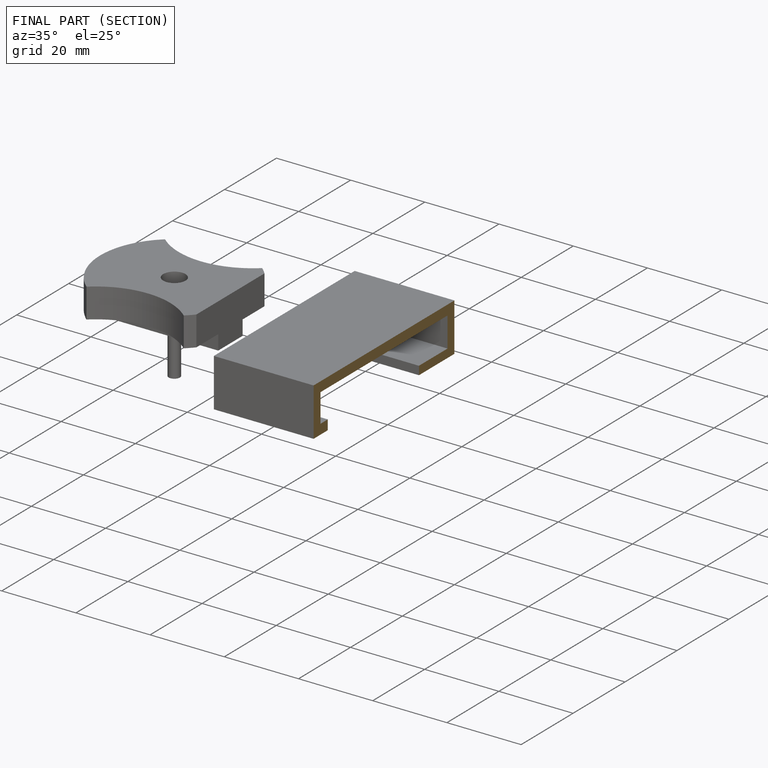
[diagram: finished part — half-section view (interior)]
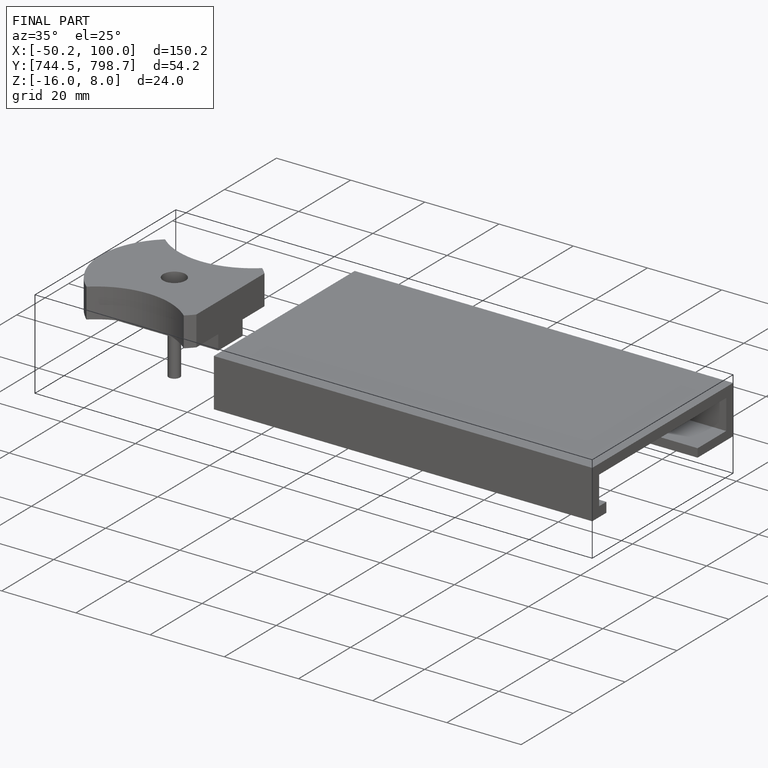
[diagram: finished part — iso view with bounding-box wireframe]
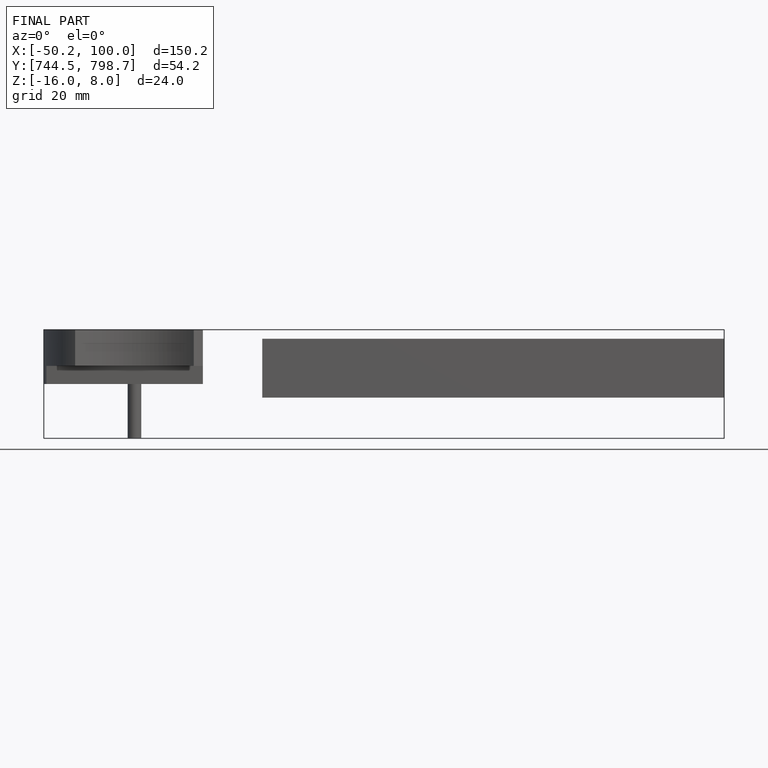
[diagram: finished part — front view with bounding-box wireframe]
